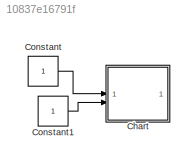
MODEL slx_10837e16791f
KIND model
CONFIG AbsTol = auto
CONFIG EnableMultiTasking = off
CONFIG FixedStep = auto
CONFIG MaxStep = auto
CONFIG MinStep = auto
CONFIG RelTol = 1e-3
CONFIG SampleTimeConstraint = Unconstrained
CONFIG SolverName = VariableStepAuto
CONFIG StartTime = 0.0
CONFIG StopTime = 10.0
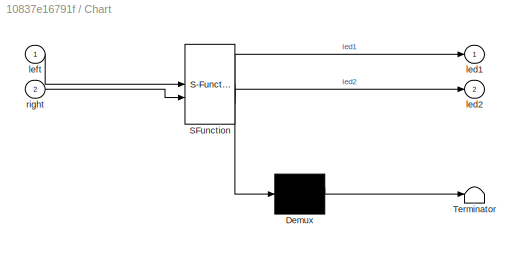
BLOCK [SubSystem] Chart
  ErrorFcn = Stateflow.Translate.translate
  PermitHierarchicalResolution = ExplicitOnly
  SFBlockType = Chart
  TreatAsAtomicUnit = on
BLOCK [Demux] Chart/ Demux 
  Outputs = 1
BLOCK [S-Function] Chart/ SFunction 
  EnableBusSupport = off
  FunctionName = sf_sfun
  PortCounts = [2 3]
  SFcnIsStateOwnerBlock = off
  SFunctionDeploymentMode = off
  Tag = Stateflow S-Function 3
BLOCK [Terminator] Chart/ Terminator 
BLOCK [Outport] Chart/led1
BLOCK [Outport] Chart/led2
  Port = 2
BLOCK [Inport] Chart/left
BLOCK [Inport] Chart/right
  Port = 2
BLOCK [Constant] Constant
BLOCK [Constant] Constant1
LINE Constant1:1 -> Chart:2
LINE Constant:1 -> Chart:1
CHART Chart states=4 transitions=11
  STATE_LABEL 'LED_ON\nentry:\nled1 = 1;\nled2 = 0;'
  STATE_LABEL 'RIGHT_ON\nentry:\nled1 = 0;\nled2 = 1;'
  STATE_LABEL 'OFF\nentry:\nled1 = 0;\nled2 = 0;'
  STATE_LABEL 'HAZARD\nentry:\nled1 = 1;\nled2 = 1;'
CHART  states=0 transitions=0
